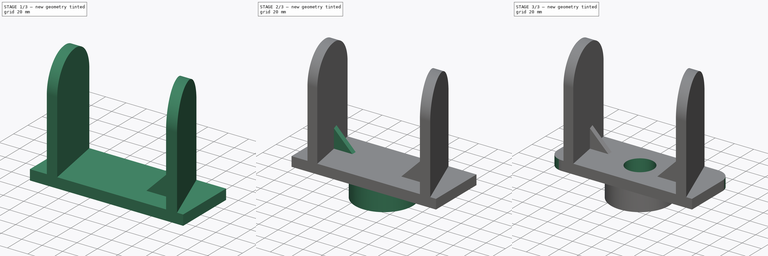
[diagram: build sequence overview — one tinted view per stage of 3, left to right]
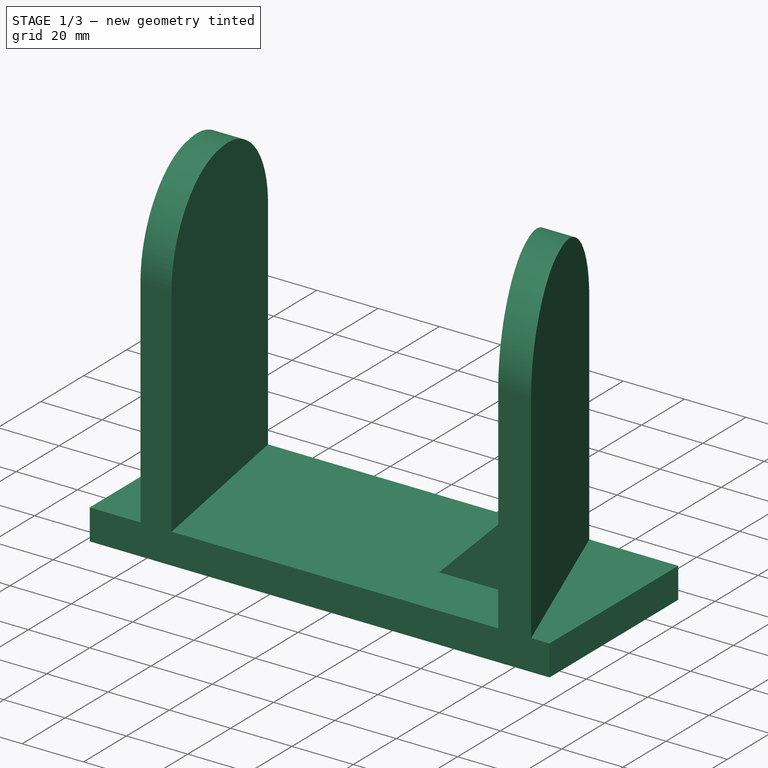
[diagram: stage 1 of 3 — iso view after this stage's code; geometry added in this stage tinted green]
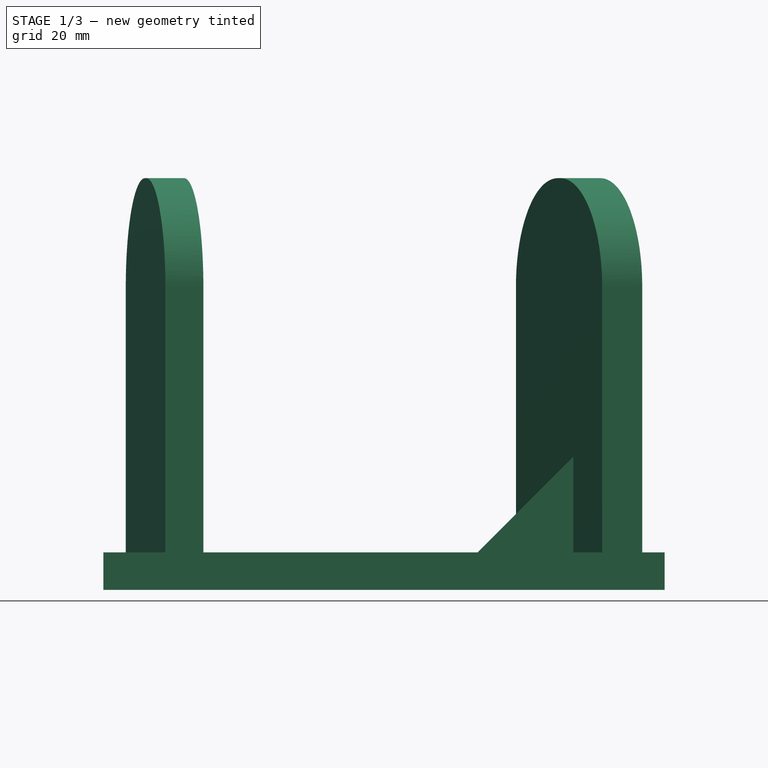
[diagram: stage 1 of 3 — front view after this stage's code; geometry added in this stage tinted green]
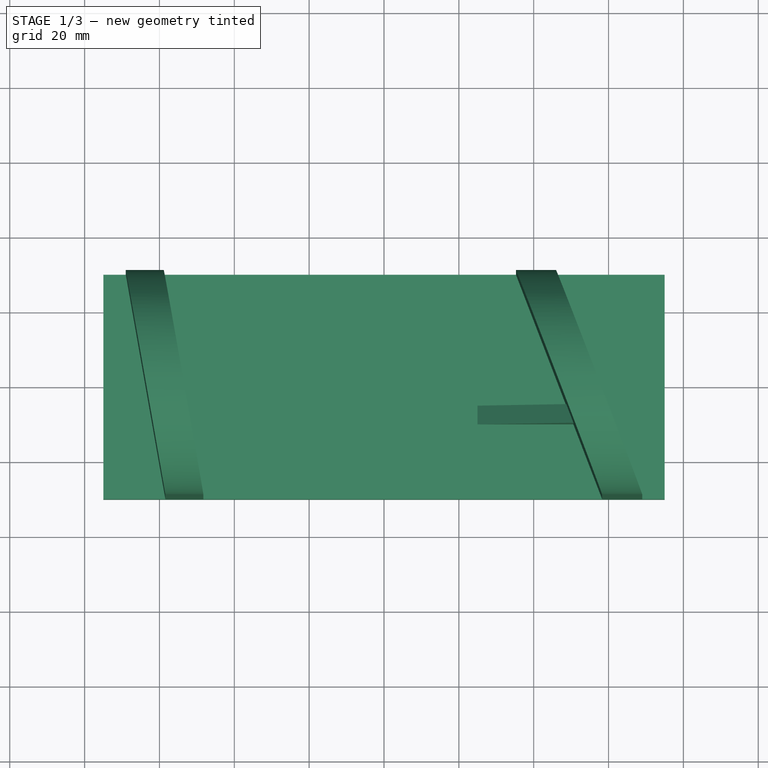
[diagram: stage 1 of 3 — top view after this stage's code; geometry added in this stage tinted green]
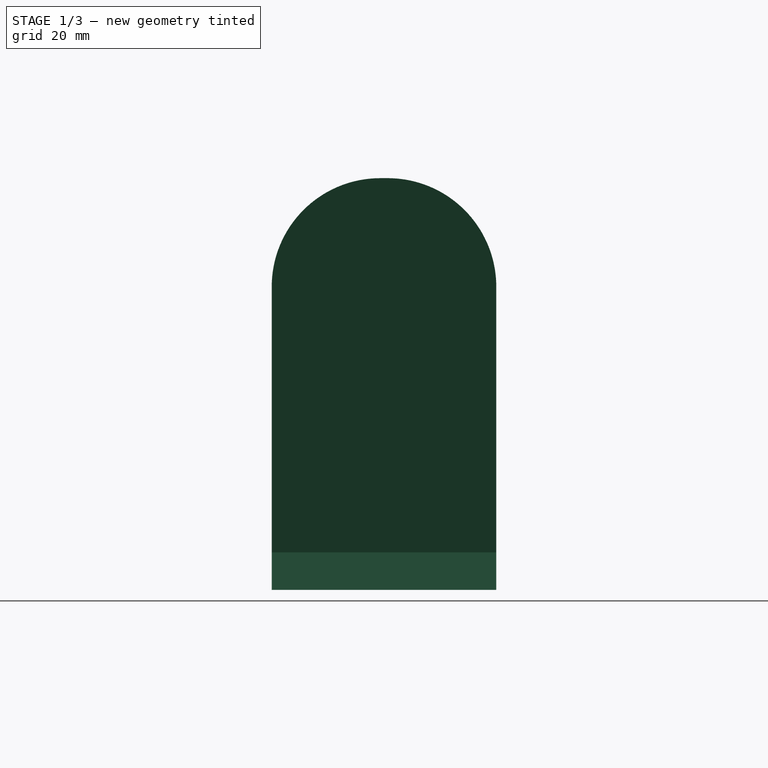
[diagram: stage 1 of 3 — right view after this stage's code; geometry added in this stage tinted green]
FCSTD DOCUMENT  (FreeCAD 1.1R41905 (Git))
Label: 24-SPO-47-HEX_LOCKING_PLATE
License: Creative Commons Attribution-NonCommercial-ShareAlike 4.0
LicenseURL: https://creativecommons.org/licenses/by-nc-sa/4.0/
objects: Sketcher::SketchObject×6, PartDesign::Pad×4, PartDesign::Pocket×2, Part::DatumPlane×2, App::Point×1, PartDesign::Hole×1, PartDesign::Fillet×1, PartDesign::Body×1
note: 37 computed .brp shape members not serialized (recipe doc carries the construction recipe); baked Part::Feature solids carry a one-line shape summary decoded from their .brp

FEATURE [App::Point] Origin001  label="Origine"
  Role = Origin
FEATURE [Sketcher::SketchObject] Sketch
  ArcFitTolerance = 1e-06
  AttachmentSupport = -> [Origin]
  ExternalTypes = [0]
  FullyConstrained = true
  MakeInternals = false
  MapMode = 5
  Placement = pos=(0,0,0) rot=(0.57735,0.57735,0.57735;2.0944rad)
  sketch-geometry (7):
    g0: LineSegment StartX=-30 StartY=0 StartZ=0 EndX=-30 EndY=81 EndZ=0
    g1: ArcOfCircle CenterX=1 CenterY=81 CenterZ=0 NormalX=0 NormalY=0 NormalZ=1 AngleXU=0 Radius=29 StartAngle=-9e-16 EndAngle=1.5708
    g2: LineSegment StartX=30 StartY=81 StartZ=0 EndX=30 EndY=0 EndZ=0
    g3: LineSegment StartX=30 StartY=0 StartZ=0 EndX=-30 EndY=0 EndZ=0
    g4: GeomPoint X=1 Y=110 Z=0
    g5: ArcOfCircle CenterX=-1 CenterY=81 CenterZ=0 NormalX=0 NormalY=0 NormalZ=1 AngleXU=0 Radius=29 StartAngle=1.5708 EndAngle=3.14159
    g6: LineSegment StartX=-1 StartY=110 StartZ=0 EndX=1 EndY=110 EndZ=0
  constraints (16):
    c: PointOnObject(g0,g-1)
    c: Vertical(g0)
    c: Tangent(g1,g2) = 1.5708
    c: Coincident(g2,g3)
    c: Coincident(g3,g0)
    c: Vertical(g2)
    c: Distance(g4,g-1) = 110
    c: Radius(g1) = 29
    c: Equal(g1,g5)
    c: Tangent(g5,g0) = 1.5708
    c: Symmetric(g0,g2,g-2)
    c: DistanceX(g3,g3) = 60
    c: Horizontal(g6)
    c: Tangent(g6,g1) = 1.5708
    c: Tangent(g6,g5) = 1.5708
    c: Coincident(g4,g1)
FEATURE [PartDesign::Pad] Pad
  Direction = (1,0,0)
  Length = 150
  Length2 = 10
  Midplane = true
  Profile = -> Sketch
  ReferenceAxis = -> Sketch [N_Axis]
  Refine = true
  Suppressed = false
  Type = 0
FEATURE [Sketcher::SketchObject] Sketch001
  ArcFitTolerance = 1e-06
  AttachmentSupport = -> [Origin]
  ExternalGeometry = -> [Pad]
  ExternalTypes = [0,0,0]
  FullyConstrained = false
  MakeInternals = false
  MapMode = 5
  sketch-geometry (14):
    g0: LineSegment StartX=-69 StartY=30 StartZ=0 EndX=-58.8457 EndY=30 EndZ=0
    g1: LineSegment StartX=-58.8457 StartY=30 StartZ=0 EndX=-48.2661 EndY=-30 EndZ=0
    g2: LineSegment StartX=-48.2661 StartY=-30 StartZ=0 EndX=-58.4204 EndY=-30 EndZ=0
    g3: LineSegment StartX=-58.4204 StartY=-30 StartZ=0 EndX=-69 EndY=30 EndZ=0
    g4: LineSegment StartX=35.2567 StartY=30 StartZ=0 EndX=45.9682 EndY=30 EndZ=0
    g5: LineSegment StartX=45.9682 StartY=30 StartZ=0 EndX=69 EndY=-30 EndZ=0
    g6: LineSegment StartX=69 StartY=-30 StartZ=0 EndX=58.2886 EndY=-30 EndZ=0
    g7: LineSegment StartX=58.2886 StartY=-30 StartZ=0 EndX=35.2567 EndY=30 EndZ=0
    g8: LineSegment [constr] StartX=-58.8457 StartY=30 StartZ=0 EndX=-68.6938 EndY=28.2635 EndZ=0
    g9: LineSegment [constr] StartX=45.9682 StartY=30 StartZ=0 EndX=36.6324 EndY=26.4163 EndZ=0
    g10: LineSegment StartX=-114.826 StartY=60.9257 StartZ=0 EndX=-114.826 EndY=-73.0584 EndZ=0
    g11: LineSegment StartX=-114.826 StartY=-73.0584 StartZ=0 EndX=102.71 EndY=-73.0584 EndZ=0
    g12: LineSegment StartX=102.71 StartY=-73.0584 StartZ=0 EndX=102.71 EndY=60.9257 EndZ=0
    g13: LineSegment StartX=102.71 StartY=60.9257 StartZ=0 EndX=-114.826 EndY=60.9257 EndZ=0
  constraints (38):
    c: PointOnObject(g0,g-4)
    c: PointOnObject(g0,g-4)
    c: Coincident(g0,g1)
    c: PointOnObject(g1,g-5)
    c: Coincident(g1,g2)
    c: PointOnObject(g2,g-5)
    c: Coincident(g2,g3)
    c: Coincident(g3,g0)
    c: PointOnObject(g4,g-4)
    c: PointOnObject(g4,g-4)
    c: Coincident(g4,g5)
    c: PointOnObject(g5,g-5)
    c: Coincident(g5,g6)
    c: PointOnObject(g6,g-5)
    c: Coincident(g6,g7)
    c: Coincident(g7,g4)
    c: Parallel(g3,g1)
    c: Parallel(g7,g5)
    c: Coincident(g8,g0)
    c: PointOnObject(g8,g3)
    c: Coincident(g9,g4)
    c: PointOnObject(g9,g7)
    c: Perpendicular(g7,g9)
    c: Distance(g9,g9) = 10
    c: Equal(g9,g8)
    c: Perpendicular(g3,g8)
    c: Distance(g5,g-5) = 6
    c: Distance(g0,g-4) = 6
    c: Angle(g7,g-5) = 1.20428
    c: Angle(g3,g-5) = 1.39626
    c: Coincident(g10,g11)
    c: Coincident(g11,g12)
    c: Coincident(g12,g13)
    c: Coincident(g13,g10)
    c: Vertical(g10)
    c: Vertical(g12)
    c: Horizontal(g11)
    c: Horizontal(g13)
FEATURE [PartDesign::Pocket] Pocket
  BaseFeature = -> Pad
  Direction = (0,0,-1)
  Length = 10
  Length2 = -200
  Profile = -> Sketch001
  ReferenceAxis = -> Sketch001 [N_Axis]
  Refine = true
  Reversed = true
  Suppressed = false
  Type = 4
FEATURE [Part::DatumPlane] DatumPlane
  AttachmentOffset = pos=(0,0,-20) rot=(0,0,1;0rad)
  AttachmentSupport = -> [Pocket]
  MapMode = 5
  Placement = pos=(-4.35e-14,-10,-1.7901e-12) rot=(1,0,0;1.5708rad)
FEATURE [Sketcher::SketchObject] Sketch002
  ArcFitTolerance = 1e-06
  AttachmentSupport = -> [DatumPlane]
  ExternalGeometry = -> [Pocket]
  ExternalTypes = [0,0,0,0]
  FullyConstrained = true
  MakeInternals = false
  MapMode = 5
  Placement = pos=(-4.35e-14,-10,-1.7901e-12) rot=(1,0,0;1.5708rad)
  sketch-geometry (3):
    g0: LineSegment StartX=25 StartY=10 StartZ=0 EndX=58.2886 EndY=43.2886 EndZ=0
    g1: LineSegment StartX=58.2886 StartY=43.2886 StartZ=0 EndX=58.2886 EndY=10 EndZ=0
    g2: LineSegment StartX=58.2886 StartY=10 StartZ=0 EndX=25 EndY=10 EndZ=0
  constraints (8):
    c: Coincident(g0,g1)
    c: Vertical(g1)
    c: Coincident(g1,g2)
    c: Coincident(g2,g0)
    c: Horizontal(g2)
    c: Angle(g-1,g0) = 0.785398
    c: Coincident(g-5,g1)
    c: DistanceX(g0,g-6) = 50
FEATURE [PartDesign::Pad] Pad001
  BaseFeature = -> Pocket
  Direction = (-4.4e-15,-1,-1.785e-13)
  Length = 5
  Length2 = 10
  Profile = -> Sketch002
  ReferenceAxis = -> Sketch002 [N_Axis]
  Refine = true
  Reversed = true
  Suppressed = false
  Type = 0
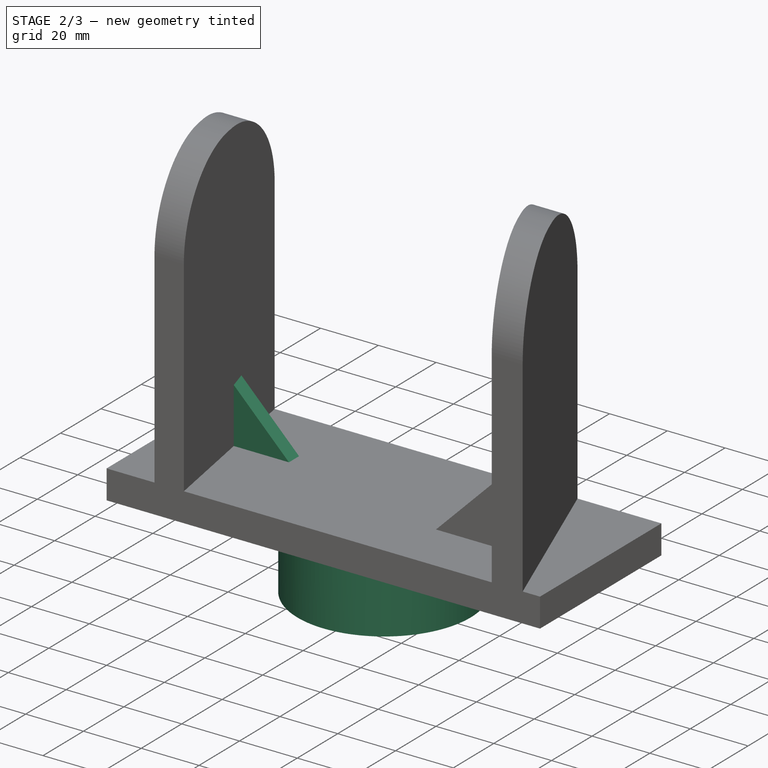
[diagram: stage 2 of 3 — iso view after this stage's code; geometry added in this stage tinted green]
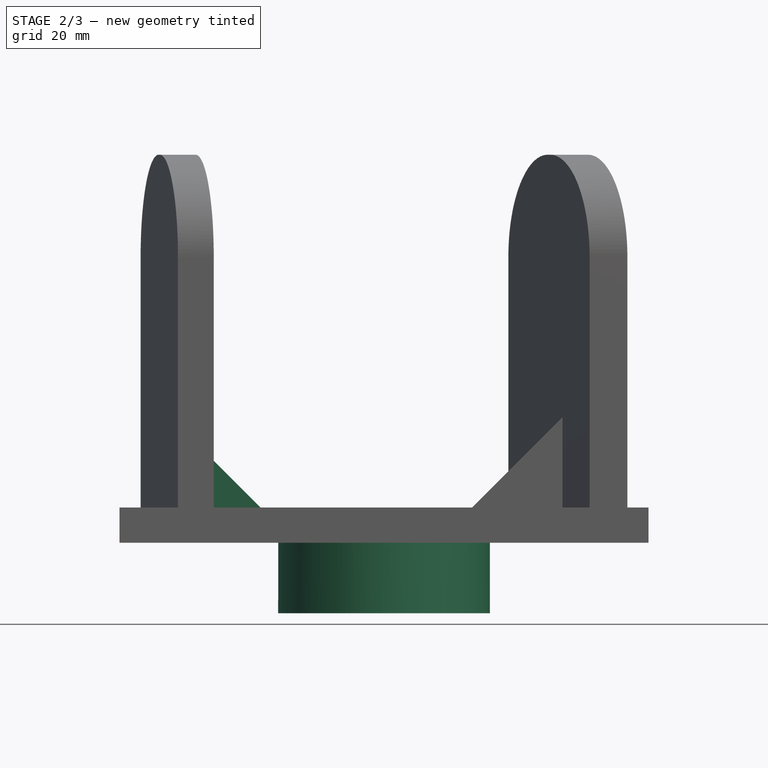
[diagram: stage 2 of 3 — front view after this stage's code; geometry added in this stage tinted green]
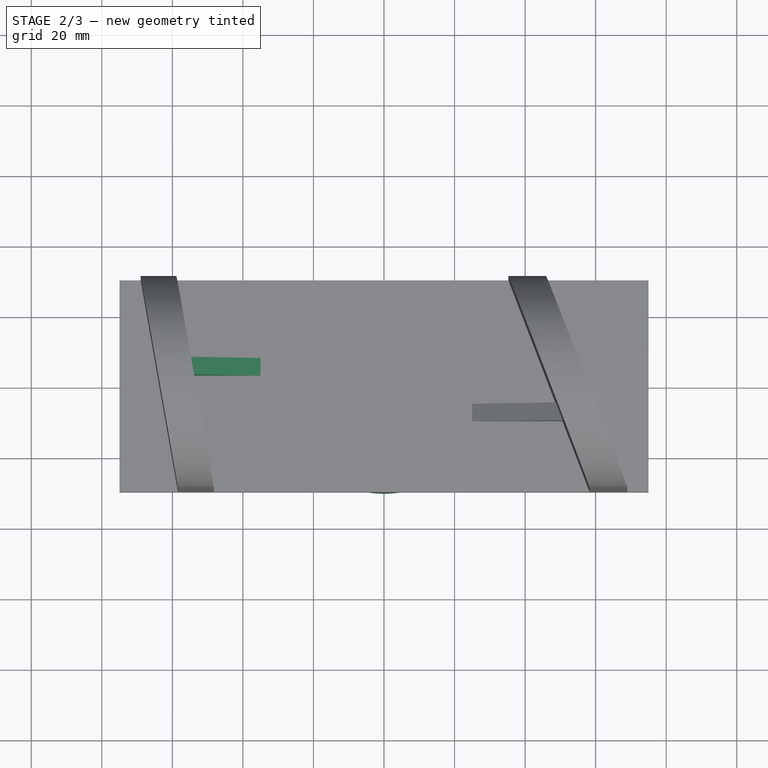
[diagram: stage 2 of 3 — top view after this stage's code; geometry added in this stage tinted green]
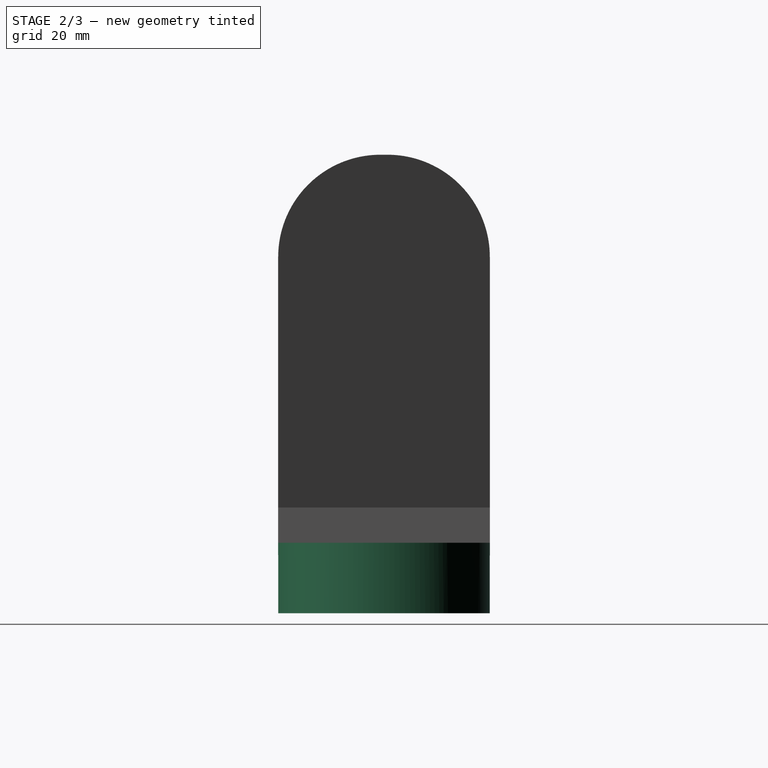
[diagram: stage 2 of 3 — right view after this stage's code; geometry added in this stage tinted green]
FEATURE [Part::DatumPlane] DatumPlane001
  AttachmentOffset = pos=(0,0,-22) rot=(0,0,1;0rad)
  AttachmentSupport = -> [Pad001]
  MapMode = 5
  Placement = pos=(0,8,1.498e-13) rot=(0,0.707107,0.707107;3.14159rad)
FEATURE [Sketcher::SketchObject] Sketch003
  ArcFitTolerance = 1e-06
  AttachmentSupport = -> [DatumPlane001]
  ExternalGeometry = -> [Pad001]
  ExternalTypes = [0,0]
  FullyConstrained = true
  MakeInternals = false
  MapMode = 5
  Placement = pos=(0,8,1.498e-13) rot=(0,0.707107,0.707107;3.14159rad)
  sketch-geometry (3):
    g0: LineSegment StartX=35 StartY=10 StartZ=0 EndX=58.8457 EndY=33.8457 EndZ=0
    g1: LineSegment StartX=58.8457 StartY=33.8457 StartZ=0 EndX=58.8457 EndY=10 EndZ=0
    g2: LineSegment StartX=58.8457 StartY=10 StartZ=0 EndX=35 EndY=10 EndZ=0
  constraints (8):
    c: Coincident(g0,g1)
    c: Vertical(g1)
    c: Coincident(g1,g2)
    c: Coincident(g2,g0)
    c: Horizontal(g2)
    c: Angle(g-1,g0) = 0.785398
    c: Coincident(g-3,g1)
    c: DistanceX(g0,g-4) = 40
FEATURE [PartDesign::Pad] Pad002
  BaseFeature = -> Pad001
  Direction = (0,1,1.89e-14)
  Length = 5
  Length2 = 10
  Profile = -> Sketch003
  ReferenceAxis = -> Sketch003 [N_Axis]
  Refine = true
  Reversed = true
  Suppressed = false
  Type = 0
FEATURE [Sketcher::SketchObject] Sketch004
  ArcFitTolerance = 1e-06
  AttachmentSupport = -> [Pad002]
  ExternalTypes = [0]
  FullyConstrained = true
  MakeInternals = false
  MapMode = 5
  Placement = pos=(0,0,0) rot=(1,0,0;3.14159rad)
  sketch-geometry (1):
    g0: Circle CenterX=0 CenterY=0 CenterZ=0 NormalX=0 NormalY=0 NormalZ=1 AngleXU=0 Radius=30
  constraints (2):
    c: Diameter(g0) = 60
    c: Coincident(g0,g-1)
FEATURE [PartDesign::Pad] Pad003
  BaseFeature = -> Pad002
  Direction = (0,0,-1)
  Length = 20
  Length2 = 10
  Profile = -> Sketch004
  ReferenceAxis = -> Sketch004 [N_Axis]
  Refine = true
  Suppressed = false
  Type = 0
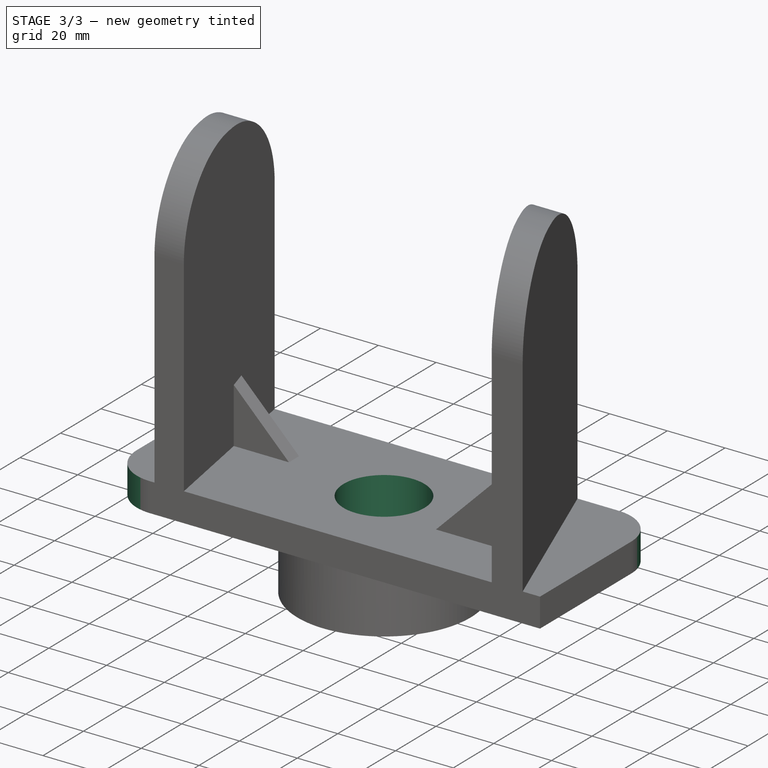
[diagram: stage 3 of 3 — iso view after this stage's code; geometry added in this stage tinted green]
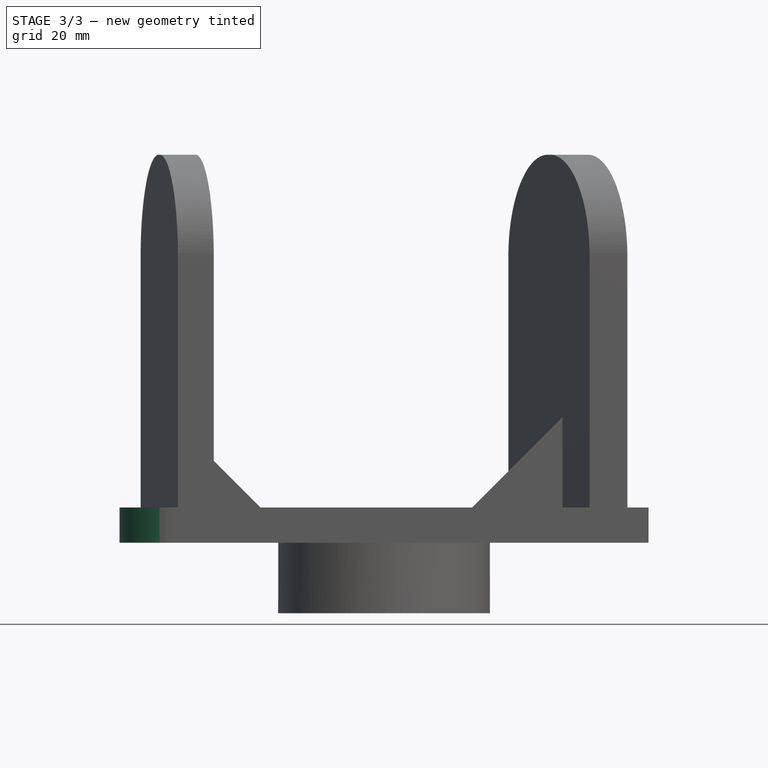
[diagram: stage 3 of 3 — front view after this stage's code; geometry added in this stage tinted green]
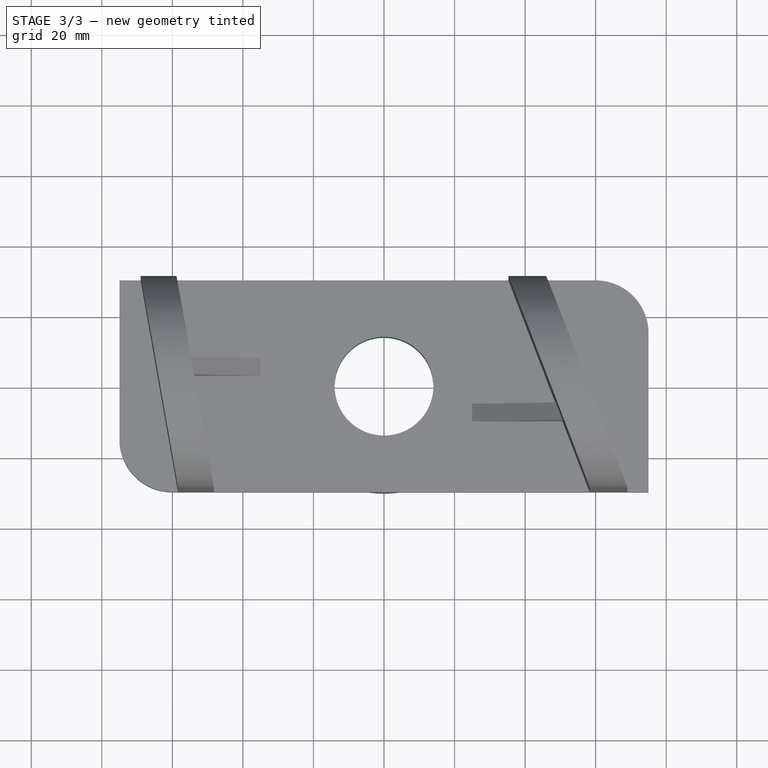
[diagram: stage 3 of 3 — top view after this stage's code; geometry added in this stage tinted green]
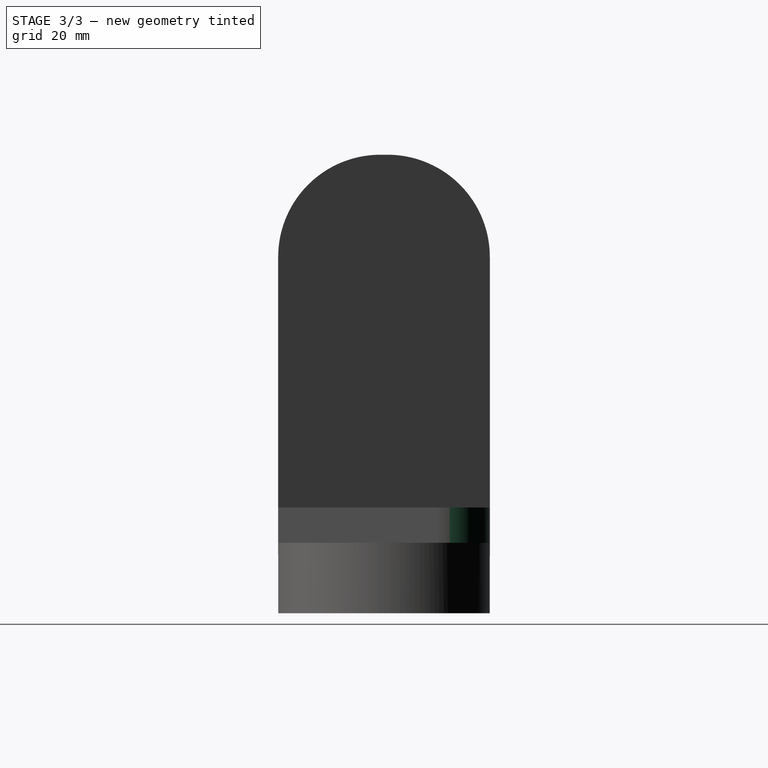
[diagram: stage 3 of 3 — right view after this stage's code; geometry added in this stage tinted green]
FEATURE [PartDesign::Hole] Hole
  BaseFeature = -> Pad003
  BaseProfileType = 7
  CustomThreadClearance = 0
  Depth = 418.871
  DepthType = 1
  Diameter = 28
  DrillForDepth = false
  DrillPoint = 1
  DrillPointAngle = 118
  HoleCutCountersinkAngle = 90
  HoleCutCustomValues = false
  HoleCutDepth = 0
  HoleCutDiameter = 0
  HoleCutType = 0
  ModelThread = false
  Profile = -> Pad003 [Face27]
  Refine = true
  Suppressed = false
  Tapered = false
  TaperedAngle = 90
  ThreadClass = 0
  ThreadDepth = 418.871
  ThreadDepthType = 0
  ThreadDiameter = 28
  ThreadDirection = 0
  ThreadFit = 0
  ThreadSize = 0
  ThreadType = 0
  Threaded = false
  UseCustomThreadClearance = false
FEATURE [Sketcher::SketchObject] Sketch005
  ArcFitTolerance = 1e-06
  AttachmentSupport = -> [Hole]
  ExternalTypes = [0]
  FullyConstrained = true
  MakeInternals = false
  MapMode = 5
  Placement = pos=(0,0,-20) rot=(1,0,0;3.14159rad)
  sketch-geometry (7):
    g0: LineSegment StartX=23.094 StartY=7.46e-14 StartZ=0 EndX=11.547 EndY=20 EndZ=0
    g1: LineSegment StartX=11.547 StartY=20 StartZ=0 EndX=-11.547 EndY=20 EndZ=0
    g2: LineSegment StartX=-11.547 StartY=20 StartZ=0 EndX=-23.094 EndY=7.11e-14 EndZ=0
    g3: LineSegment StartX=-23.094 StartY=7.11e-14 StartZ=0 EndX=-11.547 EndY=-20 EndZ=0
    g4: LineSegment StartX=-11.547 StartY=-20 StartZ=0 EndX=11.547 EndY=-20 EndZ=0
    g5: LineSegment StartX=11.547 StartY=-20 StartZ=0 EndX=23.094 EndY=7.46e-14 EndZ=0
    g6: Circle [constr] CenterX=0 CenterY=0 CenterZ=0 NormalX=0 NormalY=0 NormalZ=1 AngleXU=0 Radius=23.094
  constraints (16):
    c: Coincident(g0,g1)
    c: Coincident(g1,g2)
    c: Coincident(g2,g3)
    c: Coincident(g3,g4)
    c: Coincident(g4,g5)
    c: Coincident(g5,g0)
    c: Equal(g0, g1-g5) x5
    c: PointOnObject(g0,g6)
    c: PointOnObject(g1,g6)
    c: PointOnObject(g2,g6)
    c: PointOnObject(g3,g6)
    c: PointOnObject(g4,g6)
    c: PointOnObject(g5,g6)
    c: Coincident(g6,g-1)
    c: Horizontal(g1)
    c: DistanceY(g4,g0) = 40
FEATURE [PartDesign::Pocket] Pocket001
  BaseFeature = -> Hole
  Direction = (0,0,1)
  Length = 11
  Length2 = 5
  Profile = -> Sketch005
  ReferenceAxis = -> Sketch005 [N_Axis]
  Refine = true
  Suppressed = false
  Type = 0
FEATURE [PartDesign::Fillet] Fillet
  Base = -> Pocket001 [Edge51,Edge14]
  BaseFeature = -> Pocket001
  Radius = 15
  Refine = true
  SupportTransform = false
  Suppressed = false
  UseAllEdges = false
FEATURE [PartDesign::Body] Body  label="Corps"
  AllowCompound = false
  Group = -> [Sketch,Pad,Sketch001,Pocket,DatumPlane,Sketch002,Pad001,DatumPlane001,Sketch003,Pad002,Sketch004,Pad003,Hole,Sketch005,Pocket001,Fillet]
  Origin = -> Origin
  Tip = -> Fillet
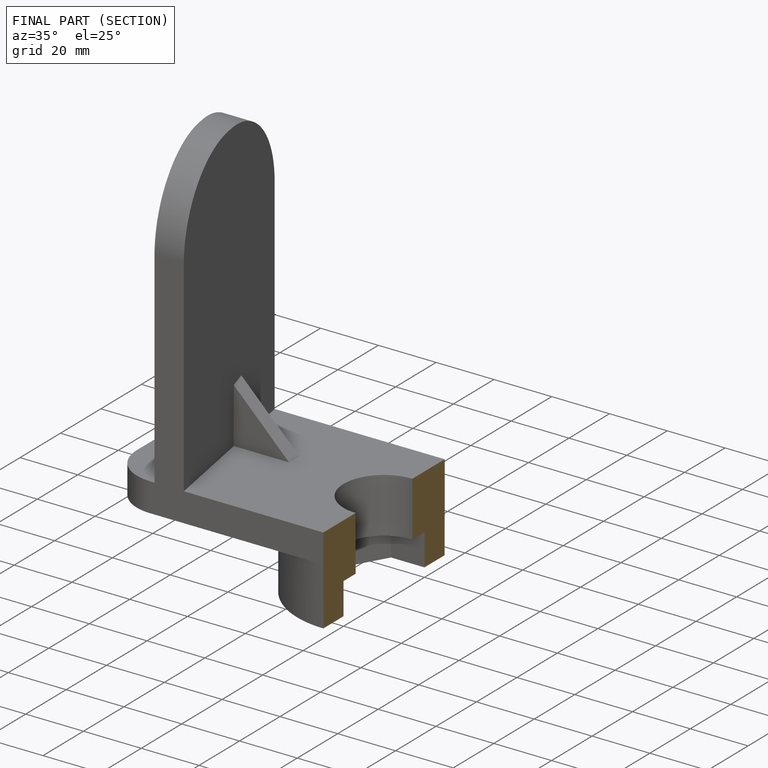
[diagram: finished part — half-section view (interior)]
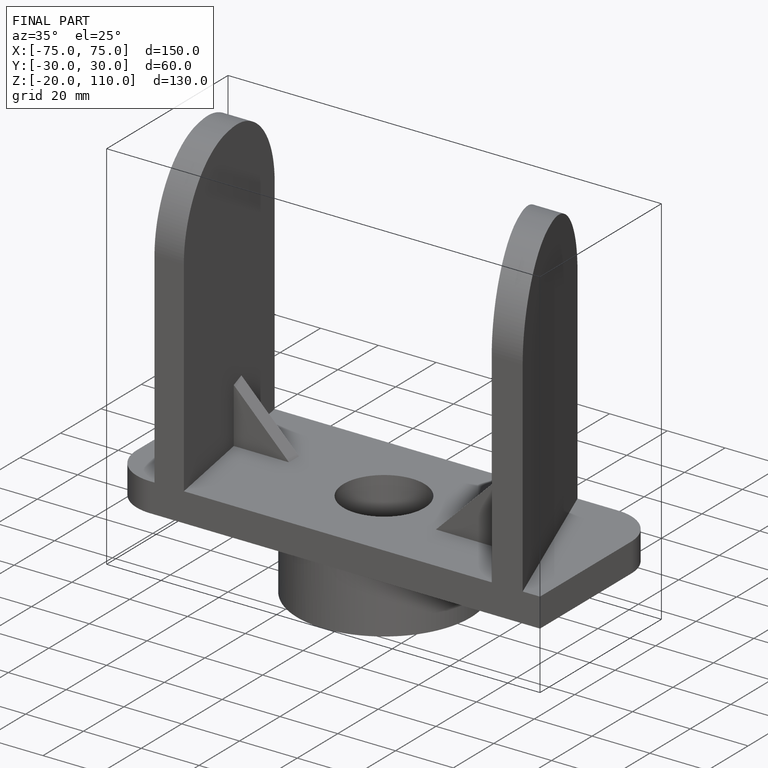
[diagram: finished part — iso view with bounding-box wireframe]
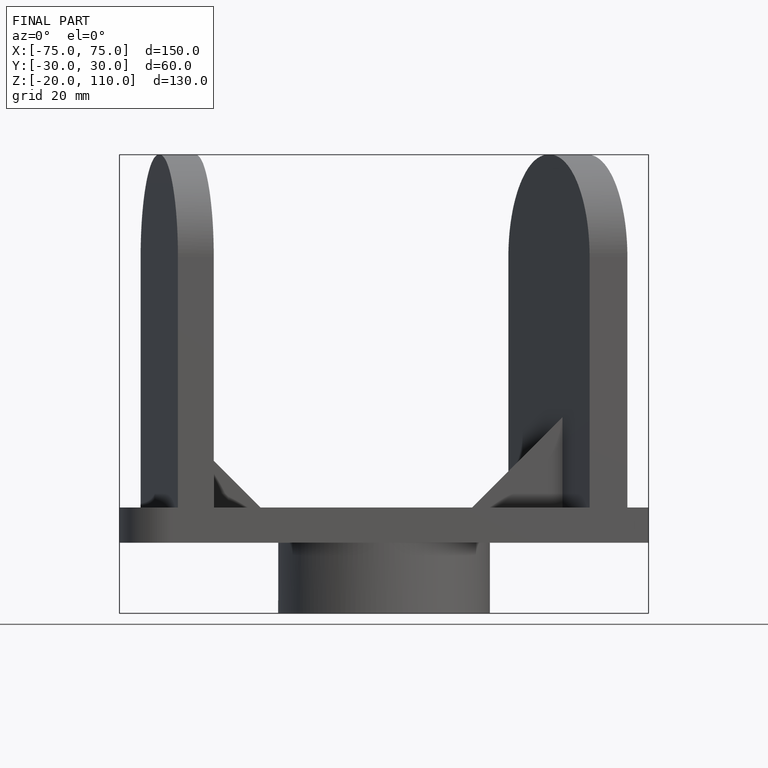
[diagram: finished part — front view with bounding-box wireframe]
